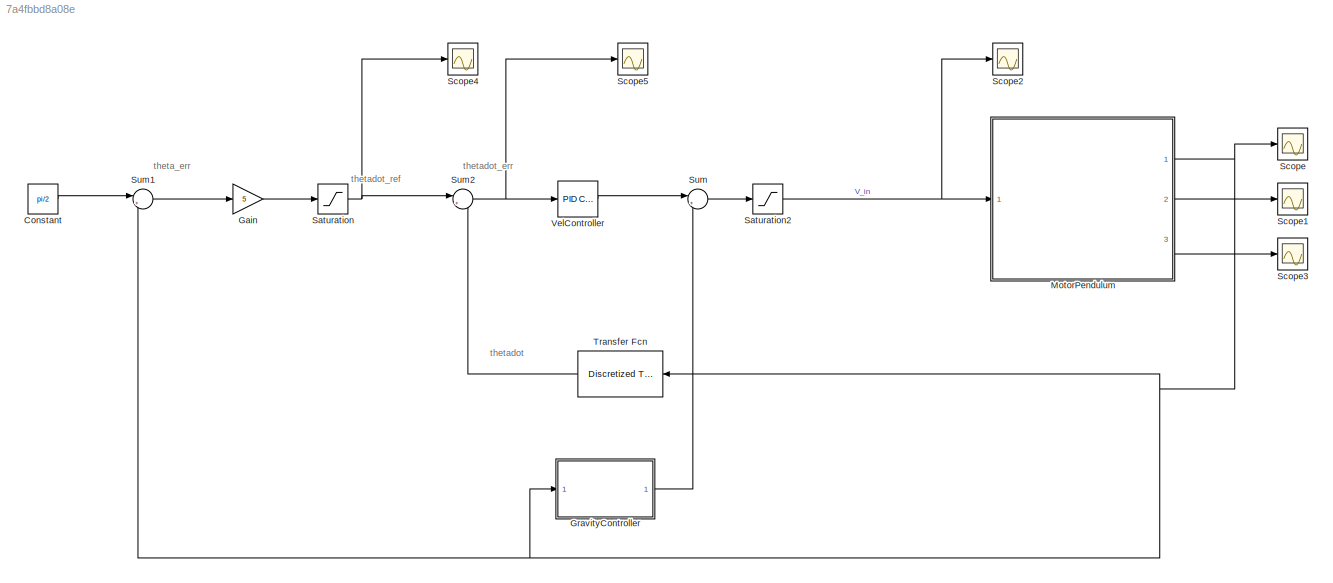
MODEL slx_7a4fbbd8a08e
KIND model
CONFIG AbsTol = auto
CONFIG EnableMultiTasking = off
CONFIG FixedStep = 0.01
CONFIG MaxStep = auto
CONFIG MinStep = auto
CONFIG RelTol = 1e-3
CONFIG SampleTimeConstraint = Unconstrained
CONFIG Solver = FixedStepDiscrete
CONFIG SolverName = FixedStepDiscrete
CONFIG StartTime = 0.0
CONFIG StopTime = 100
BLOCK [Constant] Constant
  Value = pi/2
BLOCK [Gain] Gain
  Gain = 5
  OutDataTypeStr = Inherit: Inherit via internal rule
  ParamDataTypeStr = Inherit: Inherit via internal rule
  SaturateOnIntegerOverflow = off
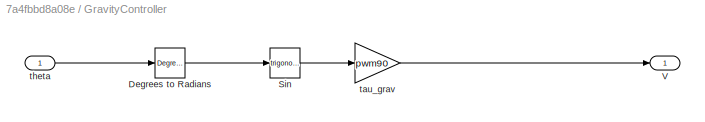
BLOCK [SubSystem] GravityController
  Ports = [1, 1]
  RequestExecContextInheritance = off
BLOCK [Reference] GravityController/Degrees to Radians  REF=simulink_extras/Transformations/Degrees to
Radians
  Ports = [1, 1]
  SourceBlock = simulink_extras/Transformations/Degrees to\nRadians
  SourceProductBaseCode = SL
  SourceProductName = Simulink
  SourceType = DegreesToRadians
BLOCK [Trigonometry] GravityController/Sin
  Ports = [1, 1]
BLOCK [Outport] GravityController/V
  IconDisplay = Port number
BLOCK [Gain] GravityController/tau_grav
  Gain = pwm90
  OutDataTypeStr = Inherit: Inherit via internal rule
  ParamDataTypeStr = Inherit: Inherit via internal rule
  SaturateOnIntegerOverflow = off
BLOCK [Inport] GravityController/theta
  IconDisplay = Port number
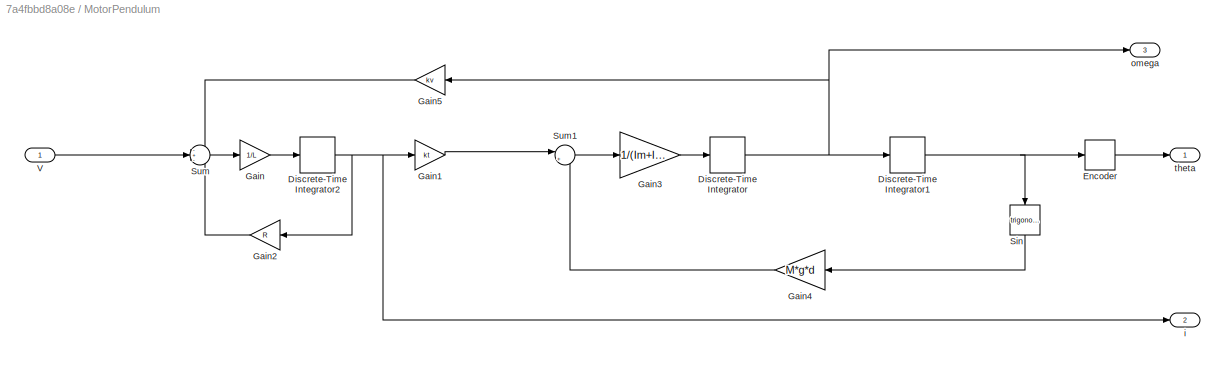
BLOCK [SubSystem] MotorPendulum
  Ports = [1, 3]
  RequestExecContextInheritance = off
BLOCK [DiscreteIntegrator] MotorPendulum/Discrete-Time Integrator
  ICPrevOutput = DiscIntNeverNeededParam
  ICPrevScaledInput = DiscIntNeverNeededParam
  InitialCondition = thetad0
  InitialConditionSetting = Auto
  Ports = [1, 1]
  SampleTime = -1
BLOCK [DiscreteIntegrator] MotorPendulum/Discrete-Time Integrator1
  ICPrevOutput = DiscIntNeverNeededParam
  ICPrevScaledInput = DiscIntNeverNeededParam
  InitialCondition = theta0
  InitialConditionSetting = Auto
  IntegratorMethod = Integration: Trapezoidal
  Ports = [1, 1]
  SampleTime = -1
BLOCK [DiscreteIntegrator] MotorPendulum/Discrete-Time Integrator2
  ICPrevOutput = DiscIntNeverNeededParam
  ICPrevScaledInput = DiscIntNeverNeededParam
  InitialConditionSetting = Auto
  IntegratorMethod = Integration: Trapezoidal
  Ports = [1, 1]
  SampleTime = -1
BLOCK [Quantizer] MotorPendulum/Encoder
  QuantizationInterval = 2*pi/2000
BLOCK [Gain] MotorPendulum/Gain
  Gain = 1/L
  OutDataTypeStr = Inherit: Inherit via internal rule
  ParamDataTypeStr = Inherit: Inherit via internal rule
  SaturateOnIntegerOverflow = off
BLOCK [Gain] MotorPendulum/Gain1
  Gain = kt
  OutDataTypeStr = Inherit: Inherit via internal rule
  ParamDataTypeStr = Inherit: Inherit via internal rule
  SaturateOnIntegerOverflow = off
BLOCK [Gain] MotorPendulum/Gain2
  Gain = R
  OutDataTypeStr = Inherit: Inherit via internal rule
  ParamDataTypeStr = Inherit: Inherit via internal rule
  SaturateOnIntegerOverflow = off
BLOCK [Gain] MotorPendulum/Gain3
  Gain = 1/(Im+Ip)
  OutDataTypeStr = Inherit: Inherit via internal rule
  ParamDataTypeStr = Inherit: Inherit via internal rule
  SaturateOnIntegerOverflow = off
BLOCK [Gain] MotorPendulum/Gain4
  Gain = M*g*d
  OutDataTypeStr = Inherit: Inherit via internal rule
  ParamDataTypeStr = Inherit: Inherit via internal rule
  SaturateOnIntegerOverflow = off
BLOCK [Gain] MotorPendulum/Gain5
  Gain = kv
  OutDataTypeStr = Inherit: Inherit via internal rule
  ParamDataTypeStr = Inherit: Inherit via internal rule
  SaturateOnIntegerOverflow = off
BLOCK [Trigonometry] MotorPendulum/Sin
  Ports = [1, 1]
BLOCK [Sum] MotorPendulum/Sum
  IconShape = round
  InputSameDT = off
  Inputs = -+-
  OutDataTypeStr = Inherit: Inherit via internal rule
  Ports = [3, 1]
  SaturateOnIntegerOverflow = off
BLOCK [Sum] MotorPendulum/Sum1
  IconShape = round
  InputSameDT = off
  Inputs = |+-
  OutDataTypeStr = Inherit: Inherit via internal rule
  Ports = [2, 1]
  SaturateOnIntegerOverflow = off
BLOCK [Inport] MotorPendulum/V
  IconDisplay = Port number
BLOCK [Outport] MotorPendulum/i
  IconDisplay = Port number
  Port = 2
BLOCK [Outport] MotorPendulum/omega 
  IconDisplay = Port number
  Port = 3
BLOCK [Outport] MotorPendulum/theta
  IconDisplay = Port number
BLOCK [Saturate] Saturation
  InputPortMap = u0
  LowerLimit = -0.1
  Ports = [1, 1]
  UpperLimit = 0.1
BLOCK [Saturate] Saturation2
  InputPortMap = u0
  LowerLimit = -10
  Ports = [1, 1]
  UpperLimit = +10
BLOCK [Scope] Scope
  Floating = off
  NumInputPorts = 1
  Ports = [1]
  ScopeSpecificationString = Simulink.scopes.TimeScopeBlockCfg('CurrentConfiguration', extmgr.ConfigurationSet(extmgr.Configuration('Core','General UI',true),extmgr.Configuration('Core','Source UI',true),extmgr.Configuration('Sources','WiredSimulink',true),extmgr.Configuration('Visuals','Time Domain',true,'SerializedDisplays',{struct('MinYLimReal','-0.54075','MaxYLimReal','1.78796','YLabelReal','','MinYLimMag','0.00000','MaxY...<+1406ch>
BLOCK [Scope] Scope1
  Floating = off
  NumInputPorts = 1
  Ports = [1]
  ScopeSpecificationString = Simulink.scopes.TimeScopeBlockCfg('CurrentConfiguration', extmgr.ConfigurationSet(extmgr.Configuration('Core','General UI',true),extmgr.Configuration('Core','Source UI',true),extmgr.Configuration('Sources','WiredSimulink',true,'DataLoggingVariableName','ScopeData1'),extmgr.Configuration('Visuals','Time Domain',true,'SerializedDisplays',{struct('MinYLimReal','-28.69136','MaxYLimReal','31.04514','YL...<+1426ch>
BLOCK [Scope] Scope2
  Floating = off
  NumInputPorts = 1
  Ports = [1]
  ScopeSpecificationString = Simulink.scopes.TimeScopeBlockCfg('CurrentConfiguration', extmgr.ConfigurationSet(extmgr.Configuration('Core','General UI',true),extmgr.Configuration('Core','Source UI',true),extmgr.Configuration('Sources','WiredSimulink',true,'DataLoggingVariableName','ScopeData1'),extmgr.Configuration('Visuals','Time Domain',true,'SerializedDisplays',{struct('MinYLimReal','-0.02619','MaxYLimReal','0.21383','YLab...<+1409ch>
BLOCK [Scope] Scope3
  Floating = off
  NumInputPorts = 1
  Ports = [1]
  ScopeSpecificationString = Simulink.scopes.TimeScopeBlockCfg('CurrentConfiguration', extmgr.ConfigurationSet(extmgr.Configuration('Core','General UI',true),extmgr.Configuration('Core','Source UI',true),extmgr.Configuration('Sources','WiredSimulink',true,'DataLoggingVariableName','ScopeData3'),extmgr.Configuration('Visuals','Time Domain',true,'SerializedDisplays',{struct('MinYLimReal','-28.69136','MaxYLimReal','31.04514','YL...<+1426ch>
BLOCK [Scope] Scope4
  Floating = off
  NumInputPorts = 1
  Ports = [1]
  ScopeSpecificationString = Simulink.scopes.TimeScopeBlockCfg('CurrentConfiguration', extmgr.ConfigurationSet(extmgr.Configuration('Core','General UI',true),extmgr.Configuration('Core','Source UI',true),extmgr.Configuration('Sources','WiredSimulink',true,'DataLoggingVariableName','ScopeData4'),extmgr.Configuration('Visuals','Time Domain',true,'SerializedDisplays',{struct('MinYLimReal','-0.05681','MaxYLimReal','0.22853','YLab...<+1369ch>
BLOCK [Scope] Scope5
  Floating = off
  NumInputPorts = 1
  Ports = [1]
  ScopeSpecificationString = Simulink.scopes.TimeScopeBlockCfg('CurrentConfiguration', extmgr.ConfigurationSet(extmgr.Configuration('Core','General UI',true),extmgr.Configuration('Core','Source UI',true),extmgr.Configuration('Sources','WiredSimulink',true,'DataLoggingVariableName','ScopeData5'),extmgr.Configuration('Visuals','Time Domain',true,'SerializedDisplays',{struct('MinYLimReal','-0.02619','MaxYLimReal','0.21383','YLab...<+1409ch>
BLOCK [Sum] Sum
  IconShape = round
  InputSameDT = off
  Inputs = |++
  OutDataTypeStr = Inherit: Inherit via internal rule
  Ports = [2, 1]
  SaturateOnIntegerOverflow = off
BLOCK [Sum] Sum1
  IconShape = round
  InputSameDT = off
  Inputs = |+-
  OutDataTypeStr = Inherit: Inherit via internal rule
  Ports = [2, 1]
  SaturateOnIntegerOverflow = off
BLOCK [Sum] Sum2
  IconShape = round
  InputSameDT = off
  Inputs = |+-
  OutDataTypeStr = Inherit: Inherit via internal rule
  Ports = [2, 1]
  SaturateOnIntegerOverflow = off
BLOCK [Reference] Transfer Fcn  REF=discretizing/Discretized  (lib defined in mdl_5048aa1cd587)
Transfer Fcn
  Ports = [1, 1]
  SourceBlock = discretizing/Discretized\nTransfer Fcn
  SourceType = DiscretizedTransferFcn
BLOCK [Reference] VelController  REF=simulink/Continuous/PID Controller
  Ports = [1, 1]
  SourceBlock = simulink/Continuous/PID Controller
  SourceProductBaseCode = SL
  SourceProductName = Simulink
  SourceType = PID 1dof
ANNOTATION (root): theta_err
ANNOTATION (root): thetadot
ANNOTATION (root): thetadot_err
ANNOTATION (root): thetadot_ref
LINE Constant:1 -> Sum1:1
LINE Gain:1 -> Saturation:1
LINE GravityController/Degrees to Radians:1 -> GravityController/Sin:1
LINE GravityController/Sin:1 -> GravityController/tau_grav:1
LINE GravityController/tau_grav:1 -> GravityController/V:1
LINE GravityController/theta:1 -> GravityController/Degrees to Radians:1
LINE GravityController:1 -> Sum:2
NET MotorPendulum/Discrete-Time Integrator1:1 -> MotorPendulum/Encoder:1, MotorPendulum/Sin:1
NET MotorPendulum/Discrete-Time Integrator2:1 -> MotorPendulum/Gain1:1, MotorPendulum/Gain2:1, MotorPendulum/i:1
NET MotorPendulum/Discrete-Time Integrator:1 -> MotorPendulum/Discrete-Time Integrator1:1, MotorPendulum/Gain5:1, MotorPendulum/omega :1
LINE MotorPendulum/Encoder:1 -> MotorPendulum/theta:1
LINE MotorPendulum/Gain1:1 -> MotorPendulum/Sum1:1
LINE MotorPendulum/Gain2:1 -> MotorPendulum/Sum:3
LINE MotorPendulum/Gain3:1 -> MotorPendulum/Discrete-Time Integrator:1
LINE MotorPendulum/Gain4:1 -> MotorPendulum/Sum1:2
LINE MotorPendulum/Gain5:1 -> MotorPendulum/Sum:1
LINE MotorPendulum/Gain:1 -> MotorPendulum/Discrete-Time Integrator2:1
LINE MotorPendulum/Sin:1 -> MotorPendulum/Gain4:1
LINE MotorPendulum/Sum1:1 -> MotorPendulum/Gain3:1
LINE MotorPendulum/Sum:1 -> MotorPendulum/Gain:1
LINE MotorPendulum/V:1 -> MotorPendulum/Sum:2
NET MotorPendulum:1 -> GravityController:1, Scope:1, Sum1:2, Transfer Fcn:1
LINE MotorPendulum:2 -> Scope1:1
LINE MotorPendulum:3 -> Scope3:1
NET Saturation2:1 -> MotorPendulum:1, Scope2:1
NET Saturation:1 -> Scope4:1, Sum2:1
LINE Sum1:1 -> Gain:1
NET Sum2:1 -> Scope5:1, VelController:1
LINE Sum:1 -> Saturation2:1
LINE Transfer Fcn:1 -> Sum2:2
LINE VelController:1 -> Sum:1
note: NET lines group one-source signal fan-out (src -> all destinations, sorted); 1:1 wires keep LINE
